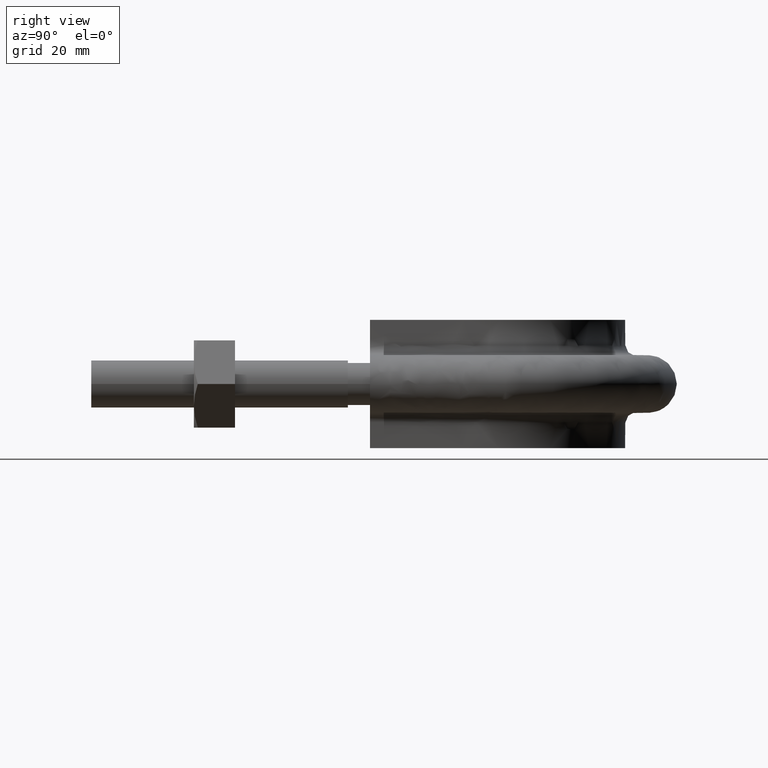
[diagram: clean part render]
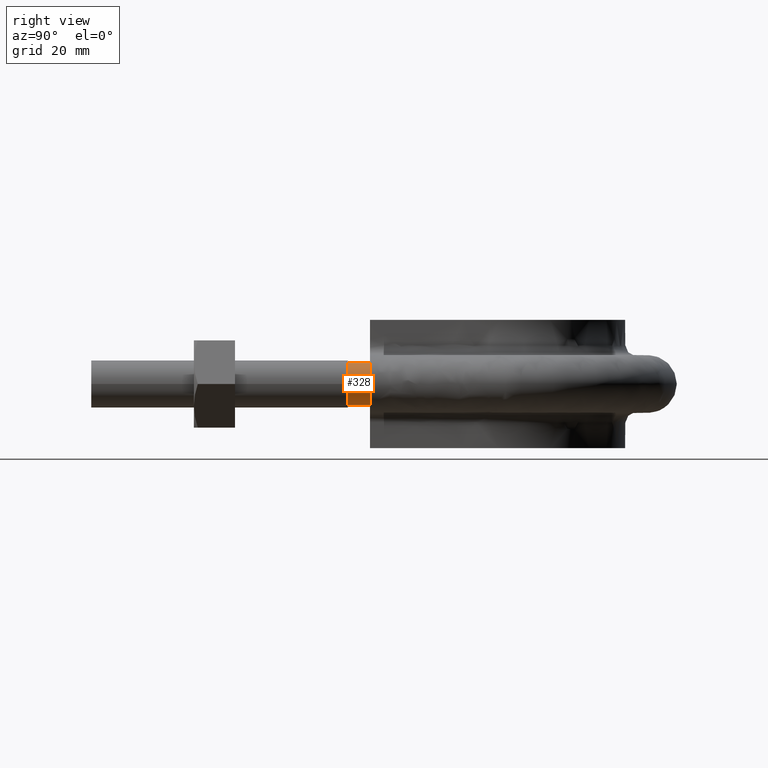
[diagram: same view with one face highlighted and labeled with its STEP entity id]
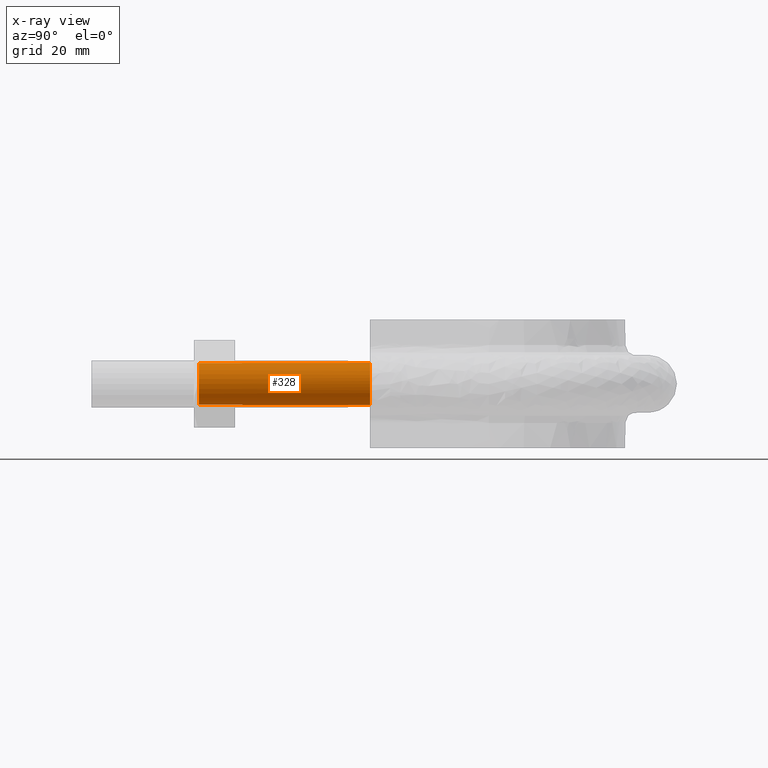
[diagram: x-ray of the same camera — body ghosted, the highlighted face saturated]
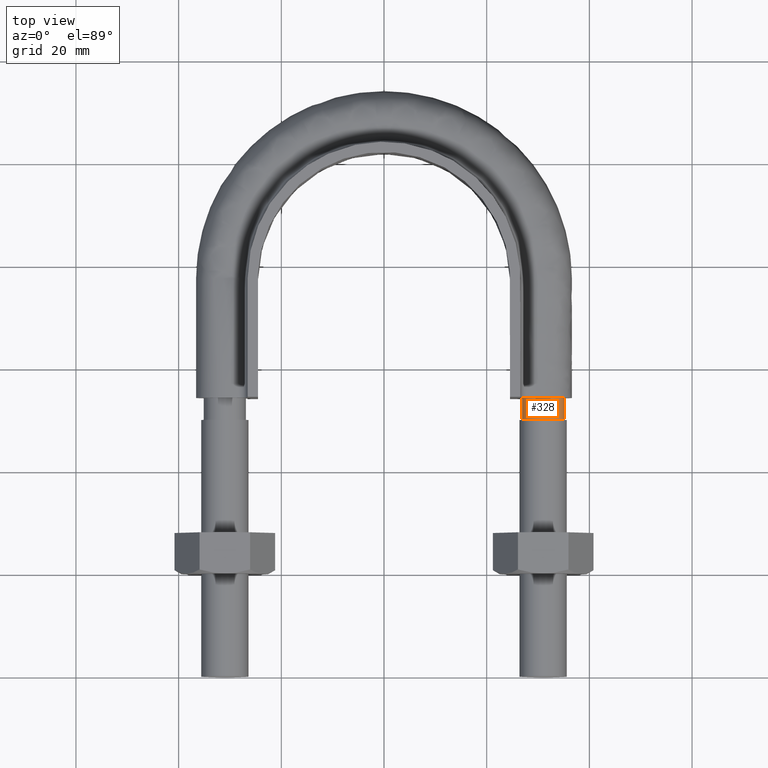
[diagram: same view with one face highlighted and labeled with its STEP entity id]
A machine part, right view. The second image highlights one B-rep face of the part: STEP entity #328.
The next image is the same camera in x-ray: the body ghosted, the highlighted face saturated — about 0% of this face is hidden behind the body in this view.
A second angle (top view) of the same face is appended — the face is thin or edge-on in the first view.
In plain terms, the highlighted cylindrical surface (bore or boss wall) has radius 4.1 mm, axis along (-0, -1, -0).
Its self-contained STEP definition (entity closure, byte-faithful):
#328 = ADVANCED_FACE( '', ( #425, #426 ), #427, .T. );
#425 = FACE_OUTER_BOUND( '', #1424, .T. );
#426 = FACE_OUTER_BOUND( '', #1425, .T. );
#427 = CYLINDRICAL_SURFACE( '', #1426, 4.10000000000000 );
#1424 = EDGE_LOOP( '', ( #1670 ) );
#1425 = EDGE_LOOP( '', ( #1671, #1672, #1673, #1674, #1675, #1676, #1677 ) );
#1426 = AXIS2_PLACEMENT_3D( '', #1678, #1679, #1680 );
#1670 = ORIENTED_EDGE( '', *, *, #2148, .F. );
#1671 = ORIENTED_EDGE( '', *, *, #2149, .T. );
#1672 = ORIENTED_EDGE( '', *, *, #2150, .T. );
#1673 = ORIENTED_EDGE( '', *, *, #2151, .T. );
#1674 = ORIENTED_EDGE( '', *, *, #2125, .T. );
#1675 = ORIENTED_EDGE( '', *, *, #2152, .T. );
#1676 = ORIENTED_EDGE( '', *, *, #2153, .T. );
#1677 = ORIENTED_EDGE( '', *, *, #2154, .T. );
#1678 = CARTESIAN_POINT( '', ( 31.0000000000000, 54.3000000000000, 1.03938464280674E-014 ) );
#1679 = DIRECTION( '', ( -2.44921270764475E-016, -1.00000000000000, -3.06151588455594E-016 ) );
#1680 = DIRECTION( '', ( 1.00000000000000, -2.44921270764475E-016, -3.74915180455534E-032 ) );
#2125 = EDGE_CURVE( '', #2287, #2288, #2289, .T. );
#2148 = EDGE_CURVE( '', #2325, #2325, #2326, .T. );
#2149 = EDGE_CURVE( '', #2312, #2310, #2327, .T. );
#2150 = EDGE_CURVE( '', #2310, #2308, #2328, .T. );
#2151 = EDGE_CURVE( '', #2308, #2287, #2329, .T. );
#2152 = EDGE_CURVE( '', #2288, #2316, #2330, .T. );
#2153 = EDGE_CURVE( '', #2316, #2314, #2331, .T. );
#2154 = EDGE_CURVE( '', #2314, #2312, #2332, .T. );
#2287 = VERTEX_POINT( '', #2735 );
#2288 = VERTEX_POINT( '', #2736 );
#2289 = CIRCLE( '', #2737, 4.10000000000000 );
#2308 = VERTEX_POINT( '', #2762 );
#2310 = VERTEX_POINT( '', #2767 );
#2312 = VERTEX_POINT( '', #2772 );
#2314 = VERTEX_POINT( '', #2777 );
#2316 = VERTEX_POINT( '', #2782 );
#2325 = VERTEX_POINT( '', #2815 );
#2326 = CIRCLE( '', #2816, 4.10000000000000 );
#2327 = CIRCLE( '', #2817, 4.10000000000000 );
#2328 = CIRCLE( '', #2818, 4.10000000000000 );
#2329 = CIRCLE( '', #2819, 4.10000000000000 );
#2330 = CIRCLE( '', #2820, 4.10000000000000 );
#2331 = CIRCLE( '', #2821, 4.10000000000000 );
#2332 = CIRCLE( '', #2822, 4.10000000000000 );
#2735 = CARTESIAN_POINT( '', ( 26.9000000000000, 54.3000000000000, -2.58256698510804E-013 ) );
#2736 = CARTESIAN_POINT( '', ( 28.4436918123816, 54.3000000000000, -3.20550907812088 ) );
#2737 = AXIS2_PLACEMENT_3D( '', #3165, #3166, #3167 );
#2762 = CARTESIAN_POINT( '', ( 28.4436918123792, 54.3000000000000, 3.20550907811889 ) );
#2767 = CARTESIAN_POINT( '', ( 31.9123358292210, 54.3000000000000, 3.99720443994545 ) );
#2772 = CARTESIAN_POINT( '', ( 34.6939723584000, 54.3000000000000, 1.77892333038190 ) );
#2777 = CARTESIAN_POINT( '', ( 34.6939723583999, 54.3000000000000, -1.77892333038200 ) );
#2782 = CARTESIAN_POINT( '', ( 31.9123358292214, 54.3000000000000, -3.99720443994537 ) );
#2815 = CARTESIAN_POINT( '', ( 35.1000000000000, 21.0000000000000, 1.98998532496135E-016 ) );
#2816 = AXIS2_PLACEMENT_3D( '', #3192, #3193, #3194 );
#2817 = AXIS2_PLACEMENT_3D( '', #3195, #3196, #3197 );
#2818 = AXIS2_PLACEMENT_3D( '', #3198, #3199, #3200 );
#2819 = AXIS2_PLACEMENT_3D( '', #3201, #3202, #3203 );
#2820 = AXIS2_PLACEMENT_3D( '', #3204, #3205, #3206 );
#2821 = AXIS2_PLACEMENT_3D( '', #3207, #3208, #3209 );
#2822 = AXIS2_PLACEMENT_3D( '', #3210, #3211, #3212 );
#3165 = CARTESIAN_POINT( '', ( 31.0000000000000, 54.3000000000000, 1.03938464280674E-014 ) );
#3166 = DIRECTION( '', ( -2.44921270764475E-016, -1.00000000000000, -3.06151588455594E-016 ) );
#3167 = DIRECTION( '', ( 1.00000000000000, -2.44921270764475E-016, -3.16197804102265E-032 ) );
#3192 = CARTESIAN_POINT( '', ( 31.0000000000000, 21.0000000000000, 1.98998532496135E-016 ) );
#3193 = DIRECTION( '', ( -2.44921270764475E-016, -1.00000000000000, -3.06151588455594E-016 ) );
#3194 = DIRECTION( '', ( 1.00000000000000, -2.44921270764475E-016, -3.16197804102265E-032 ) );
#3195 = CARTESIAN_POINT( '', ( 31.0000000000000, 54.3000000000000, 1.03938464280674E-014 ) );
#3196 = DIRECTION( '', ( -2.44921270764475E-016, -1.00000000000000, -3.06151588455594E-016 ) );
#3197 = DIRECTION( '', ( 1.00000000000000, -2.44921270764475E-016, -3.16197804102265E-032 ) );
#3198 = CARTESIAN_POINT( '', ( 31.0000000000000, 54.3000000000000, 1.03938464280674E-014 ) );
#3199 = DIRECTION( '', ( -2.44921270764475E-016, -1.00000000000000, -3.06151588455594E-016 ) );
#3200 = DIRECTION( '', ( 1.00000000000000, -2.44921270764475E-016, -3.16197804102265E-032 ) );
#3201 = CARTESIAN_POINT( '', ( 31.0000000000000, 54.3000000000000, 1.03938464280674E-014 ) );
#3202 = DIRECTION( '', ( -2.44921270764475E-016, -1.00000000000000, -3.06151588455594E-016 ) );
#3203 = DIRECTION( '', ( 1.00000000000000, -2.44921270764475E-016, -3.16197804102265E-032 ) );
#3204 = CARTESIAN_POINT( '', ( 31.0000000000000, 54.3000000000000, 1.03938464280674E-014 ) );
#3205 = DIRECTION( '', ( -2.44921270764475E-016, -1.00000000000000, -3.06151588455594E-016 ) );
#3206 = DIRECTION( '', ( 1.00000000000000, -2.44921270764475E-016, -3.16197804102265E-032 ) );
#3207 = CARTESIAN_POINT( '', ( 31.0000000000000, 54.3000000000000, 1.03938464280674E-014 ) );
#3208 = DIRECTION( '', ( -2.44921270764475E-016, -1.00000000000000, -3.06151588455594E-016 ) );
#3209 = DIRECTION( '', ( 1.00000000000000, -2.44921270764475E-016, -3.16197804102265E-032 ) );
#3210 = CARTESIAN_POINT( '', ( 31.0000000000000, 54.3000000000000, 1.03938464280674E-014 ) );
#3211 = DIRECTION( '', ( -2.44921270764475E-016, -1.00000000000000, -3.06151588455594E-016 ) );
#3212 = DIRECTION( '', ( 1.00000000000000, -2.44921270764475E-016, -3.16197804102265E-032 ) );